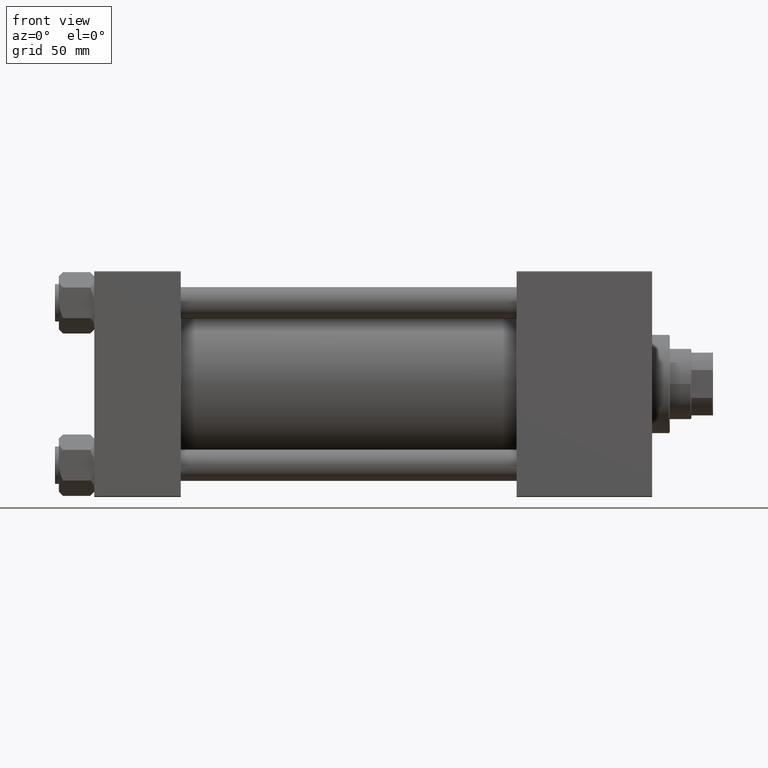
[diagram: clean part render]
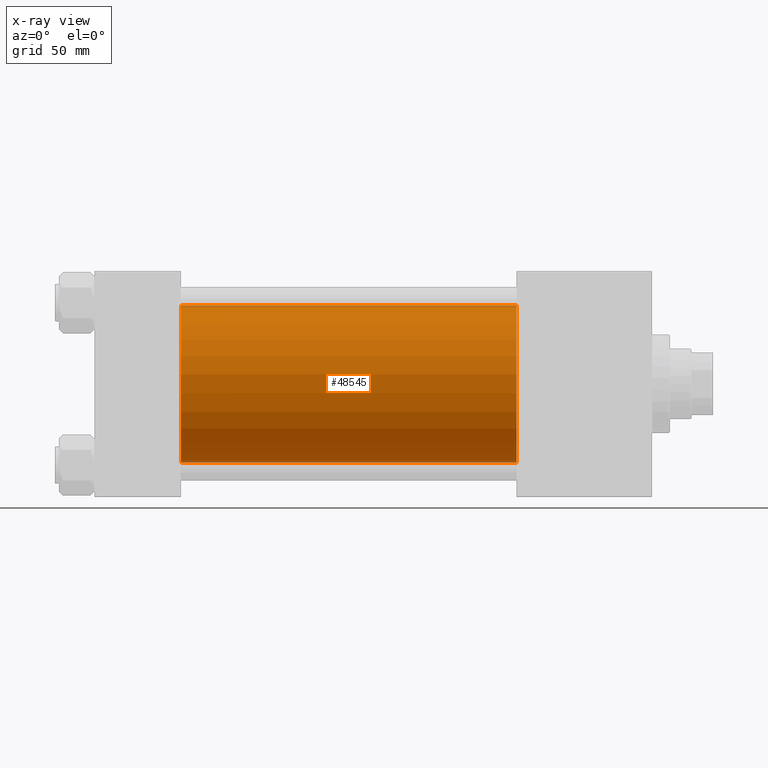
[diagram: x-ray — body ghosted, one internal face saturated and labeled with its STEP entity id]
A machine part, front view, then the same camera in x-ray: the body is ghosted and one INTERNAL B-rep face — a face not visible from any outside direction — is saturated and labeled: STEP entity #48545.
In plain terms, the highlighted cylindrical surface (partial cylindrical patch) has radius 40 mm, axis along (-1, -0, -0).
Its self-contained STEP definition (entity closure, byte-faithful):
#207 = EDGE_CURVE ( 'NONE', #22555, #34135, #46958, .T. ) ;
#634 = DIRECTION ( 'NONE',  ( 0.000000000000000000, 0.000000000000000000, -1.000000000000000000 ) ) ;
#1150 = DIRECTION ( 'NONE',  ( 1.000000000000000000, 0.000000000000000000, 0.000000000000000000 ) ) ;
#4156 = LINE ( 'NONE', #39885, #23544 ) ;
#5547 = DIRECTION ( 'NONE',  ( 1.000000000000000000, 0.000000000000000000, 0.000000000000000000 ) ) ;
#6945 = ORIENTED_EDGE ( 'NONE', *, *, #207, .F. ) ;
#7097 = VECTOR ( 'NONE', #37350, 1000.000000000000000 ) ;
#9012 = CARTESIAN_POINT ( 'NONE',  ( 215.0000000000000284, -2.602085213965210642E-15, 0.000000000000000000 ) ) ;
#11597 = FACE_OUTER_BOUND ( 'NONE', #44470, .T. ) ;
#12632 = ORIENTED_EDGE ( 'NONE', *, *, #16027, .F. ) ;
#15813 = EDGE_CURVE ( 'NONE', #21476, #34135, #21658, .T. ) ;
#16027 = EDGE_CURVE ( 'NONE', #29544, #22555, #4156, .T. ) ;
#18277 = AXIS2_PLACEMENT_3D ( 'NONE', #21715, #5547, #37407 ) ;
#19209 = AXIS2_PLACEMENT_3D ( 'NONE', #9012, #43704, #36500 ) ;
#20117 = ORIENTED_EDGE ( 'NONE', *, *, #15813, .T. ) ;
#20320 = CYLINDRICAL_SURFACE ( 'NONE', #19209, 40.00000000000000000 ) ;
#21476 = VERTEX_POINT ( 'NONE', #31349 ) ;
#21658 = LINE ( 'NONE', #22161, #7097 ) ;
#21715 = CARTESIAN_POINT ( 'NONE',  ( 215.0000000000000284, -2.602085213965210642E-15, 0.000000000000000000 ) ) ;
#22161 = CARTESIAN_POINT ( 'NONE',  ( 215.0000000000000284, 2.296501982624201990E-15, -40.00000000000000000 ) ) ;
#22555 = VERTEX_POINT ( 'NONE', #50472 ) ;
#23544 = VECTOR ( 'NONE', #32658, 1000.000000000000000 ) ;
#29544 = VERTEX_POINT ( 'NONE', #30411 ) ;
#30135 = ORIENTED_EDGE ( 'NONE', *, *, #49960, .T. ) ;
#30411 = CARTESIAN_POINT ( 'NONE',  ( 215.0000000000000284, -2.602085213965210642E-15, 40.00000000000000000 ) ) ;
#31349 = CARTESIAN_POINT ( 'NONE',  ( 215.0000000000000284, 2.296501982624201990E-15, -40.00000000000000000 ) ) ;
#31733 = CARTESIAN_POINT ( 'NONE',  ( 44.00000000000000000, -2.602085213965210642E-15, 0.000000000000000000 ) ) ;
#32658 = DIRECTION ( 'NONE',  ( -1.000000000000000000, -0.000000000000000000, -0.000000000000000000 ) ) ;
#34135 = VERTEX_POINT ( 'NONE', #49770 ) ;
#35476 = AXIS2_PLACEMENT_3D ( 'NONE', #31733, #1150, #634 ) ;
#36500 = DIRECTION ( 'NONE',  ( 0.000000000000000000, 0.000000000000000000, 1.000000000000000000 ) ) ;
#37350 = DIRECTION ( 'NONE',  ( -1.000000000000000000, -0.000000000000000000, -0.000000000000000000 ) ) ;
#37407 = DIRECTION ( 'NONE',  ( 0.000000000000000000, 0.000000000000000000, -1.000000000000000000 ) ) ;
#39885 = CARTESIAN_POINT ( 'NONE',  ( 215.0000000000000284, -2.602085213965210642E-15, 40.00000000000000000 ) ) ;
#43704 = DIRECTION ( 'NONE',  ( -1.000000000000000000, -0.000000000000000000, -0.000000000000000000 ) ) ;
#44470 = EDGE_LOOP ( 'NONE', ( #30135, #20117, #6945, #12632 ) ) ;
#46958 = CIRCLE ( 'NONE', #35476, 40.00000000000000000 ) ;
#47852 = CIRCLE ( 'NONE', #18277, 40.00000000000000000 ) ;
#48545 = ADVANCED_FACE ( 'NONE', ( #11597 ), #20320, .F. ) ;
#49770 = CARTESIAN_POINT ( 'NONE',  ( 44.00000000000000000, 2.296501982624201990E-15, -40.00000000000000000 ) ) ;
#49960 = EDGE_CURVE ( 'NONE', #29544, #21476, #47852, .T. ) ;
#50472 = CARTESIAN_POINT ( 'NONE',  ( 44.00000000000000000, -2.602085213965210642E-15, 40.00000000000000000 ) ) ;